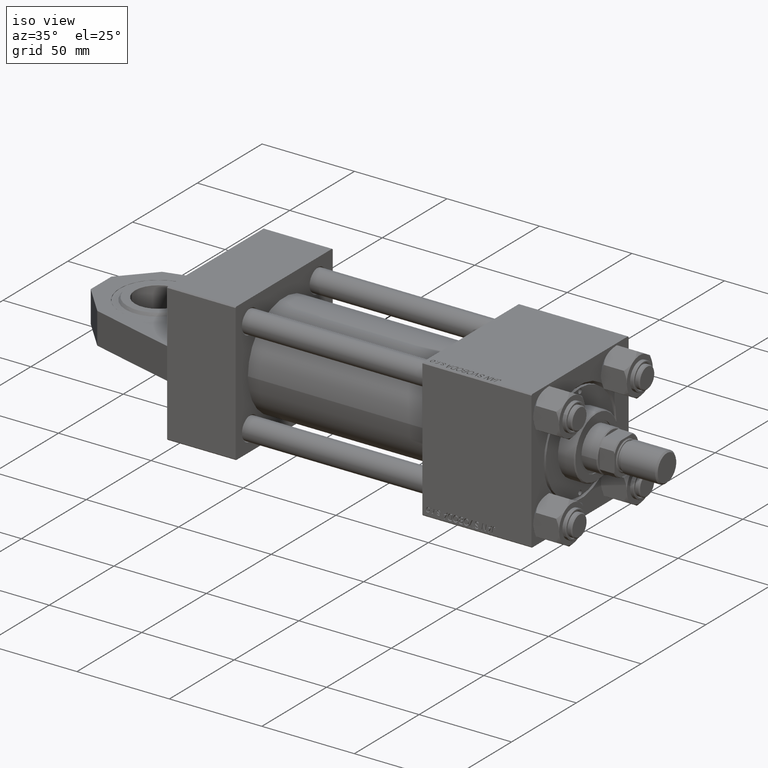
[diagram: clean part render]
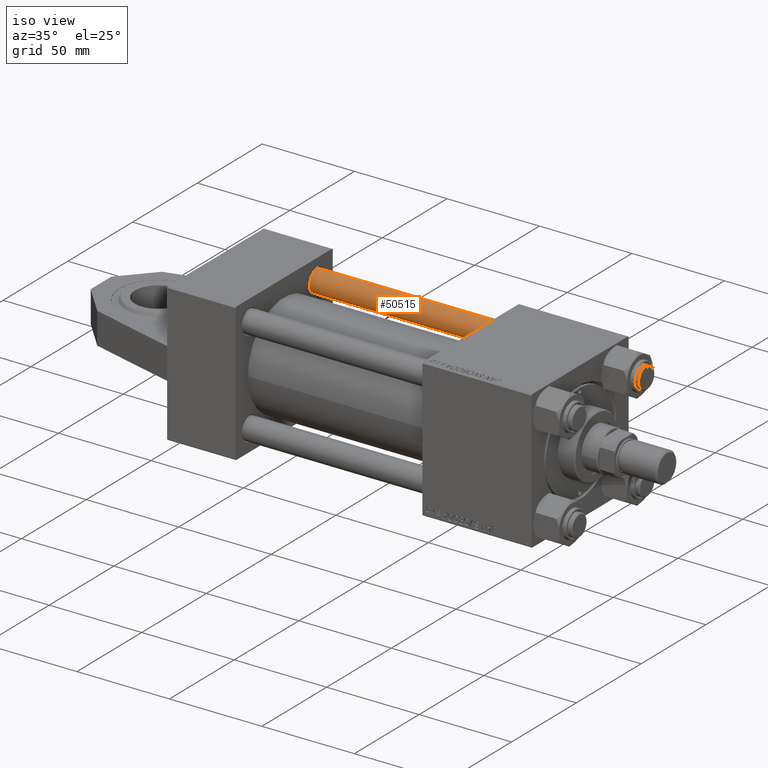
[diagram: same view with one face highlighted and labeled with its STEP entity id]
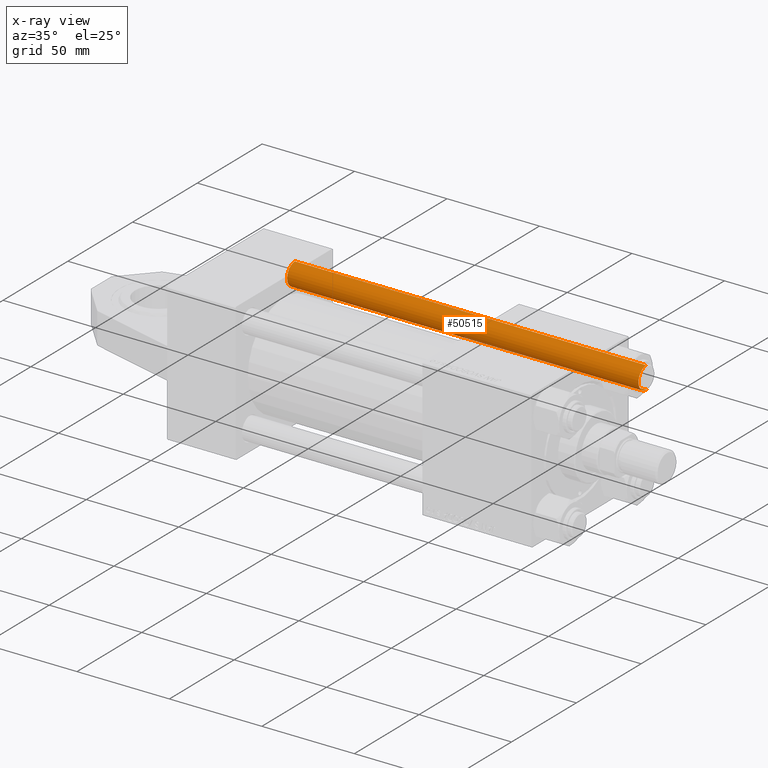
[diagram: x-ray of the same camera — body ghosted, the highlighted face saturated]
A machine part, iso view. The second image highlights one B-rep face of the part: STEP entity #50515.
The next image is the same camera in x-ray: the body ghosted, the highlighted face saturated — about 1% of this face is hidden behind the body in this view.
In plain terms, the highlighted cylindrical surface (edge-blend (fillet) strip) has radius 6 mm, axis along (1, 0, 0).
Its self-contained STEP definition (entity closure, byte-faithful):
#1020 = EDGE_CURVE ( 'NONE', #37139, #26774, #14750, .T. ) ;
#1397 = DIRECTION ( 'NONE',  ( 0.000000000000000000, 0.000000000000000000, -1.000000000000000000 ) ) ;
#4203 = DIRECTION ( 'NONE',  ( -0.000000000000000000, -0.000000000000000000, -1.000000000000000000 ) ) ;
#4972 = AXIS2_PLACEMENT_3D ( 'NONE', #32230, #12756, #5095 ) ;
#5095 = DIRECTION ( 'NONE',  ( 1.000000000000000000, 0.000000000000000000, 0.000000000000000000 ) ) ;
#7025 = CARTESIAN_POINT ( 'NONE',  ( -6.000000000000000888, 0.000000000000000000, 190.5000000000000284 ) ) ;
#7527 = EDGE_LOOP ( 'NONE', ( #8824, #39285, #20330, #47780 ) ) ;
#8824 = ORIENTED_EDGE ( 'NONE', *, *, #29956, .F. ) ;
#10735 = CIRCLE ( 'NONE', #25457, 6.000000000000000888 ) ;
#12365 = FACE_OUTER_BOUND ( 'NONE', #7527, .T. ) ;
#12549 = EDGE_CURVE ( 'NONE', #15775, #37139, #41160, .T. ) ;
#12756 = DIRECTION ( 'NONE',  ( -0.000000000000000000, -0.000000000000000000, 1.000000000000000000 ) ) ;
#14750 = CIRCLE ( 'NONE', #4972, 6.000000000000000888 ) ;
#15014 = VERTEX_POINT ( 'NONE', #49738 ) ;
#15775 = VERTEX_POINT ( 'NONE', #7025 ) ;
#17311 = CARTESIAN_POINT ( 'NONE',  ( -6.000000000000000888, 0.000000000000000000, 0.4999999999999449329 ) ) ;
#17367 = AXIS2_PLACEMENT_3D ( 'NONE', #39281, #4203, #35441 ) ;
#18350 = CARTESIAN_POINT ( 'NONE',  ( -6.000000000000000888, 0.000000000000000000, 191.0000000000000000 ) ) ;
#19710 = CARTESIAN_POINT ( 'NONE',  ( 6.000000000000000888, 7.347880794884120722E-16, 191.0000000000000000 ) ) ;
#20330 = ORIENTED_EDGE ( 'NONE', *, *, #12549, .T. ) ;
#24597 = VECTOR ( 'NONE', #37297, 1000.000000000000000 ) ;
#25024 = VECTOR ( 'NONE', #43541, 1000.000000000000000 ) ;
#25457 = AXIS2_PLACEMENT_3D ( 'NONE', #28512, #1397, #40581 ) ;
#26774 = VERTEX_POINT ( 'NONE', #41812 ) ;
#28512 = CARTESIAN_POINT ( 'NONE',  ( 0.000000000000000000, 0.000000000000000000, 190.5000000000000284 ) ) ;
#29956 = EDGE_CURVE ( 'NONE', #15014, #26774, #36080, .T. ) ;
#32093 = CYLINDRICAL_SURFACE ( 'NONE', #17367, 6.000000000000000888 ) ;
#32230 = CARTESIAN_POINT ( 'NONE',  ( 0.000000000000000000, 0.000000000000000000, 0.4999999999999449329 ) ) ;
#35441 = DIRECTION ( 'NONE',  ( -1.000000000000000000, 0.000000000000000000, 0.000000000000000000 ) ) ;
#36080 = LINE ( 'NONE', #19710, #25024 ) ;
#37139 = VERTEX_POINT ( 'NONE', #17311 ) ;
#37297 = DIRECTION ( 'NONE',  ( -0.000000000000000000, -0.000000000000000000, -1.000000000000000000 ) ) ;
#39281 = CARTESIAN_POINT ( 'NONE',  ( 0.000000000000000000, 0.000000000000000000, 191.0000000000000000 ) ) ;
#39285 = ORIENTED_EDGE ( 'NONE', *, *, #48109, .T. ) ;
#40581 = DIRECTION ( 'NONE',  ( 1.000000000000000000, 0.000000000000000000, 0.000000000000000000 ) ) ;
#41160 = LINE ( 'NONE', #18350, #24597 ) ;
#41812 = CARTESIAN_POINT ( 'NONE',  ( 6.000000000000000888, 7.347880794884120722E-16, 0.4999999999999449329 ) ) ;
#43541 = DIRECTION ( 'NONE',  ( -0.000000000000000000, -0.000000000000000000, -1.000000000000000000 ) ) ;
#47780 = ORIENTED_EDGE ( 'NONE', *, *, #1020, .T. ) ;
#48109 = EDGE_CURVE ( 'NONE', #15014, #15775, #10735, .T. ) ;
#49738 = CARTESIAN_POINT ( 'NONE',  ( 6.000000000000000888, 7.347880794884120722E-16, 190.5000000000000284 ) ) ;
#50515 = ADVANCED_FACE ( 'NONE', ( #12365 ), #32093, .T. ) ;